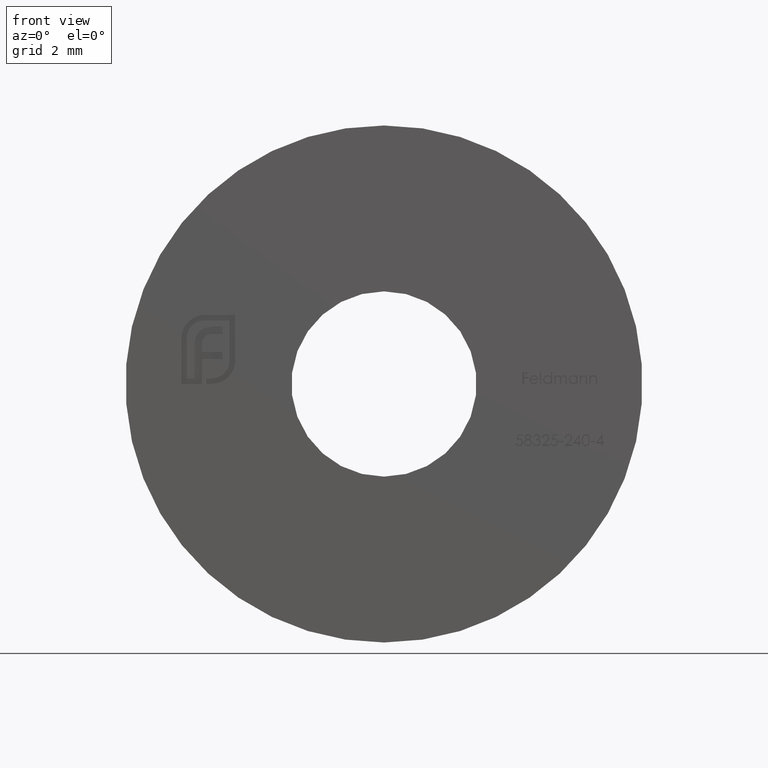
[diagram: clean part render]
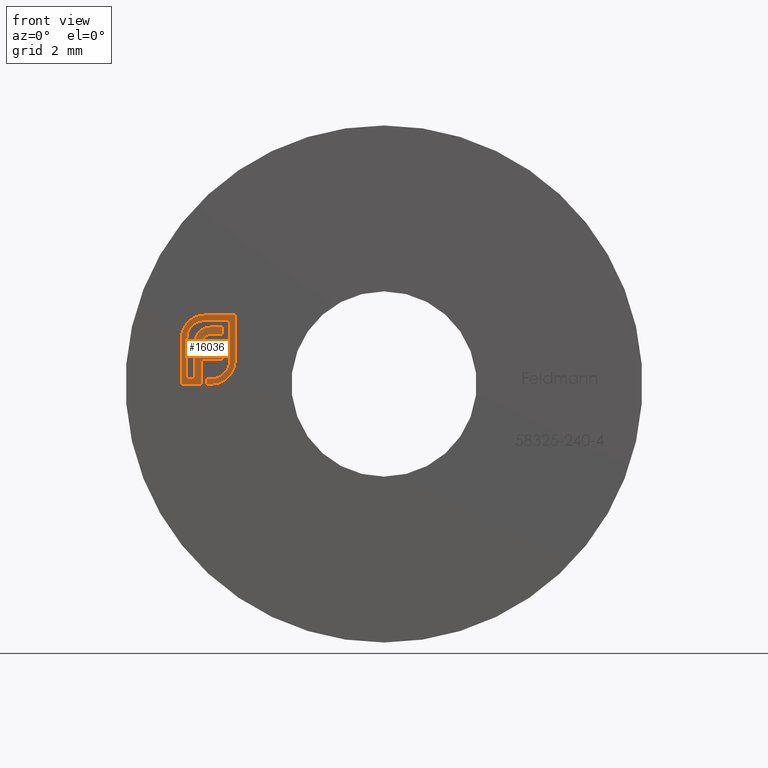
[diagram: same view with one face highlighted and labeled with its STEP entity id]
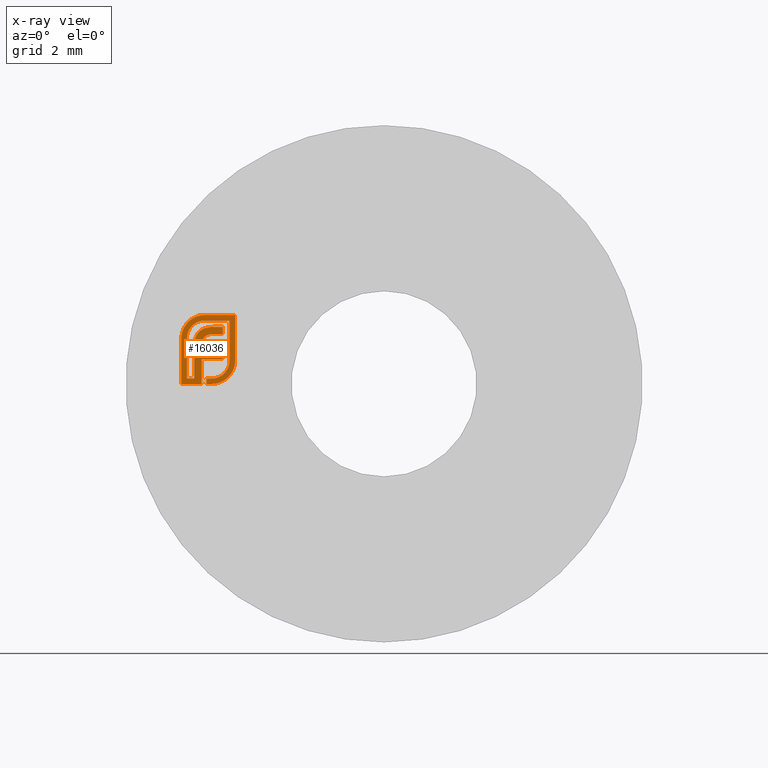
[diagram: x-ray of the same camera — body ghosted, the highlighted face saturated]
A machine part, front view. The second image highlights one B-rep face of the part: STEP entity #16036.
The next image is the same camera in x-ray: the body ghosted, the highlighted face saturated — about 0% of this face is hidden behind the body in this view.
In plain terms, the highlighted planar face has unit normal (0, -1, -0).
Its self-contained STEP definition (entity closure, byte-faithful):
#36 = ORIENTED_EDGE ( 'NONE', *, *, #3115, .F. ) ;
#106 = ORIENTED_EDGE ( 'NONE', *, *, #13630, .F. ) ;
#116 = CARTESIAN_POINT ( 'NONE',  ( -3.999554658974848298, -0.4000000000000000222, 0.000000000000000000 ) ) ;
#127 = CARTESIAN_POINT ( 'NONE',  ( -3.733088135354099446, -0.4000000000000000222, 0.07159281297280375989 ) ) ;
#153 = AXIS2_PLACEMENT_3D ( 'NONE', #1472, #11564, #11899 ) ;
#204 = B_SPLINE_CURVE_WITH_KNOTS ( 'NONE', 3,
 ( #1930, #10749, #3202, #4357, #5521, #9335, #7787 ),
 .UNSPECIFIED., .F., .F.,
 ( 4, 1, 1, 1, 4 ),
 ( 0.000000000000000000, 0.2663974462967100831, 0.5202005568595428064, 0.7659044003744390761, 1.000000000000000000 ),
 .UNSPECIFIED. ) ;
#217 = DIRECTION ( 'NONE',  ( -3.166044289548382817E-14, -3.957555361935478521E-15, 1.000000000000000000 ) ) ;
#322 = EDGE_CURVE ( 'NONE', #10700, #1573, #6845, .T. ) ;
#333 = DIRECTION ( 'NONE',  ( 1.000000000000000000, 0.000000000000000000, 0.000000000000000000 ) ) ;
#424 = ORIENTED_EDGE ( 'NONE', *, *, #13553, .F. ) ;
#476 = VERTEX_POINT ( 'NONE', #8366 ) ;
#522 = CARTESIAN_POINT ( 'NONE',  ( -4.231085321758122575, -0.4000000000000002442, 0.9239734979632048262 ) ) ;
#534 = CARTESIAN_POINT ( 'NONE',  ( -3.893974167128649189, -0.4000000000000001332, 0.009380844225528026104 ) ) ;
#650 = CARTESIAN_POINT ( 'NONE',  ( -4.389703789125392497, -0.4000000000000001332, 1.022375544888747045 ) ) ;
#699 = LINE ( 'NONE', #15989, #9981 ) ;
#730 = CARTESIAN_POINT ( 'NONE',  ( -4.507674219774742141, -0.3999999999999999112, 1.286621208712525943 ) ) ;
#823 = ORIENTED_EDGE ( 'NONE', *, *, #15577, .F. ) ;
#881 = EDGE_CURVE ( 'NONE', #11891, #8514, #11083, .T. ) ;
#892 = CARTESIAN_POINT ( 'NONE',  ( -4.173794164491057224, -0.3999999999999998002, 1.473227550997893598 ) ) ;
#1056 = LINE ( 'NONE', #9554, #12501 ) ;
#1090 = VERTEX_POINT ( 'NONE', #7735 ) ;
#1094 = LINE ( 'NONE', #8198, #8795 ) ;
#1107 = VERTEX_POINT ( 'NONE', #1750 ) ;
#1128 = LINE ( 'NONE', #11370, #2699 ) ;
#1180 = ORIENTED_EDGE ( 'NONE', *, *, #11076, .F. ) ;
#1207 = DIRECTION ( 'NONE',  ( -1.000000000000000000, 0.000000000000000000, 0.000000000000000000 ) ) ;
#1211 = VERTEX_POINT ( 'NONE', #8392 ) ;
#1227 = ORIENTED_EDGE ( 'NONE', *, *, #8751, .F. ) ;
#1247 = CARTESIAN_POINT ( 'NONE',  ( -4.298968547939800544, -0.4000000000000002442, 1.201593960516133652 ) ) ;
#1335 = DIRECTION ( 'NONE',  ( 1.000000000000000000, -7.560702781011642585E-15, 7.560702781011642585E-15 ) ) ;
#1388 = VERTEX_POINT ( 'NONE', #10074 ) ;
#1391 = CARTESIAN_POINT ( 'NONE',  ( -4.697385044406332533, -0.4000000000000001332, 1.128473651574875447 ) ) ;
#1453 = CARTESIAN_POINT ( 'NONE',  ( -4.674112834980037157, -0.3999999999999999112, 1.229760282681160888 ) ) ;
#1472 = CARTESIAN_POINT ( 'NONE',  ( -4.236474197818512089, -0.4000000000000000222, 1.594031296689726096 ) ) ;
#1493 = VERTEX_POINT ( 'NONE', #12996 ) ;
#1573 = VERTEX_POINT ( 'NONE', #9633 ) ;
#1653 = CARTESIAN_POINT ( 'NONE',  ( -3.748177203559129644, -0.4000000000000000222, 1.326232782020862144 ) ) ;
#1654 = DIRECTION ( 'NONE',  ( 0.000000000000000000, 0.000000000000000000, 1.000000000000000000 ) ) ;
#1746 = CARTESIAN_POINT ( 'NONE',  ( -3.677806544202375960, -0.4000000000000000222, 0.2777912812597952419 ) ) ;
#1750 = CARTESIAN_POINT ( 'NONE',  ( -4.231348430124463711, -0.4000000000000000222, 0.7432168700988371901 ) ) ;
#1780 = CARTESIAN_POINT ( 'NONE',  ( -3.707083571000749256, -0.4000000000000000222, 0.2472038833590084750 ) ) ;
#1807 = CARTESIAN_POINT ( 'NONE',  ( -3.583846058346531027, -0.3999999999999999112, 0.5278837320242464326 ) ) ;
#1835 = EDGE_CURVE ( 'NONE', #1493, #5547, #5206, .T. ) ;
#1912 = CARTESIAN_POINT ( 'NONE',  ( -3.967129214534251158, -0.4000000000000000222, 1.161537207782977532 ) ) ;
#1914 = CARTESIAN_POINT ( 'NONE',  ( -4.404312663743971790, -0.4000000000000000222, 0.8835249118466454998 ) ) ;
#1930 = CARTESIAN_POINT ( 'NONE',  ( -3.967129214534251158, -0.4000000000000000222, 1.161537207782977532 ) ) ;
#1945 = CARTESIAN_POINT ( 'NONE',  ( -4.142419240916093592, -0.4000000000000000222, 1.297980909636975655 ) ) ;
#1982 = EDGE_CURVE ( 'NONE', #6339, #7938, #13523, .T. ) ;
#2007 = CARTESIAN_POINT ( 'NONE',  ( -4.529020143618221361, -0.4000000000000001332, 1.252509509407138566 ) ) ;
#2033 = DIRECTION ( 'NONE',  ( -1.000000000000000000, -1.489903195081494132E-14, -0.000000000000000000 ) ) ;
#2035 = LINE ( 'NONE', #11528, #5392 ) ;
#2085 = CARTESIAN_POINT ( 'NONE',  ( -4.361020809703639145, -0.3999999999999999112, 1.109692898621747137 ) ) ;
#2091 = LINE ( 'NONE', #15308, #11355 ) ;
#2097 = CARTESIAN_POINT ( 'NONE',  ( -4.630085083542502034, -0.4000000000000000222, 1.323985473990325845 ) ) ;
#2111 = CARTESIAN_POINT ( 'NONE',  ( -4.568690151378755893, -0.4000000000000001332, 1.139824598638464526 ) ) ;
#2151 = CARTESIAN_POINT ( 'NONE',  ( -3.540140688732327678, -0.4000000000000000222, 0.2577983355029659363 ) ) ;
#2243 = EDGE_CURVE ( 'NONE', #12651, #8902, #9498, .T. ) ;
#2281 = CARTESIAN_POINT ( 'NONE',  ( -4.319327598634988163, -0.4000000000000000222, 1.443326677341211228 ) ) ;
#2355 = VERTEX_POINT ( 'NONE', #3861 ) ;
#2417 = VERTEX_POINT ( 'NONE', #9950 ) ;
#2426 = ORIENTED_EDGE ( 'NONE', *, *, #2713, .F. ) ;
#2441 = CARTESIAN_POINT ( 'NONE',  ( -4.087486555007143529, -0.4000000000000000222, 1.141150872756643508 ) ) ;
#2444 = EDGE_CURVE ( 'NONE', #7207, #4784, #5908, .T. ) ;
#2547 = ORIENTED_EDGE ( 'NONE', *, *, #7663, .F. ) ;
#2563 = ORIENTED_EDGE ( 'NONE', *, *, #11547, .F. ) ;
#2564 = ORIENTED_EDGE ( 'NONE', *, *, #1835, .F. ) ;
#2635 = B_SPLINE_CURVE_WITH_KNOTS ( 'NONE', 3,
 ( #3194, #4519, #5740, #9437, #12011, #8280, #534, #10563, #13183, #4464, #5578 ),
 .UNSPECIFIED., .F., .F.,
 ( 4, 1, 1, 1, 1, 1, 1, 1, 4 ),
 ( 0.000000000000000000, 0.1255101535771535048, 0.2499629154941277187, 0.3729415475394177171, 0.4954949726337942173, 0.6195755186633563616, 0.7452592868548906235, 0.8712004049175033904, 1.000000000000000000 ),
 .UNSPECIFIED. ) ;
#2666 = B_SPLINE_CURVE_WITH_KNOTS ( 'NONE', 3,
 ( #10702, #4197, #13033, #5686, #2974, #3079, #6978 ),
 .UNSPECIFIED., .F., .F.,
 ( 4, 1, 1, 1, 4 ),
 ( 0.000000000000000000, 0.2531688454537565636, 0.5035614958825498366, 0.7514299623983485832, 1.000000000000000000 ),
 .UNSPECIFIED. ) ;
#2682 = ORIENTED_EDGE ( 'NONE', *, *, #10920, .F. ) ;
#2699 = VECTOR ( 'NONE', #1335, 1000.000000000000000 ) ;
#2713 = EDGE_CURVE ( 'NONE', #1090, #11891, #10850, .T. ) ;
#2722 = CARTESIAN_POINT ( 'NONE',  ( -4.635764471484072224, -0.4000000000000000222, 1.313772857760228785 ) ) ;
#2772 = CARTESIAN_POINT ( 'NONE',  ( -3.457843192111953901, -0.3999999999999999112, 0.5289601859452607302 ) ) ;
#2797 = CARTESIAN_POINT ( 'NONE',  ( -4.323448849008137529, -0.4000000000000000222, 1.573834348125871418 ) ) ;
#2838 = LINE ( 'NONE', #13041, #7959 ) ;
#2878 = EDGE_CURVE ( 'NONE', #9548, #8531, #4647, .T. ) ;
#2930 = ORIENTED_EDGE ( 'NONE', *, *, #12690, .F. ) ;
#2944 = CARTESIAN_POINT ( 'NONE',  ( -4.172717710570045924, -0.4000000000000001332, 1.599230417232471613 ) ) ;
#2974 = CARTESIAN_POINT ( 'NONE',  ( -3.520967592918860856, -0.4000000000000001332, 0.2885932513837418112 ) ) ;
#2978 = VECTOR ( 'NONE', #4804, 1000.000000000000000 ) ;
#3017 = CARTESIAN_POINT ( 'NONE',  ( -4.231348430124463711, -0.4000000000000000222, 0.8928233761316916040 ) ) ;
#3079 = CARTESIAN_POINT ( 'NONE',  ( -3.533743638389394093, -0.4000000000000001332, 0.2680729739396757183 ) ) ;
#3092 = CARTESIAN_POINT ( 'NONE',  ( -4.116414676562744290, -0.4000000000000000222, 0.000000000000000000 ) ) ;
#3115 = EDGE_CURVE ( 'NONE', #5547, #7207, #204, .T. ) ;
#3137 = LINE ( 'NONE', #4817, #5323 ) ;
#3194 = CARTESIAN_POINT ( 'NONE',  ( -3.733088135354099446, -0.4000000000000000222, 0.07159281297280375989 ) ) ;
#3202 = CARTESIAN_POINT ( 'NONE',  ( -3.997178557037526669, -0.4000000000000000222, 1.161105721189783280 ) ) ;
#3223 = CARTESIAN_POINT ( 'NONE',  ( -3.717254778390181702, -0.3999999999999999112, 0.2374338926720714615 ) ) ;
#3265 = CARTESIAN_POINT ( 'NONE',  ( -4.559669394013216248, -0.4000000000000000222, 1.179011378935941323 ) ) ;
#3303 = CARTESIAN_POINT ( 'NONE',  ( -3.936630034119828370, -0.4000000000000000222, 1.326232782020862144 ) ) ;
#3377 = VERTEX_POINT ( 'NONE', #7287 ) ;
#3512 = EDGE_CURVE ( 'NONE', #7938, #5296, #2635, .T. ) ;
#3541 = EDGE_CURVE ( 'NONE', #7051, #14780, #9268, .T. ) ;
#3547 = ORIENTED_EDGE ( 'NONE', *, *, #7429, .F. ) ;
#3580 = CARTESIAN_POINT ( 'NONE',  ( -4.594253941607430392, -0.3999999999999999112, 1.382098620695016544 ) ) ;
#3626 = CARTESIAN_POINT ( 'NONE',  ( -4.340244722378532316, -0.4000000000000001332, 1.147229309736004899 ) ) ;
#3696 = CARTESIAN_POINT ( 'NONE',  ( -4.162002925182196833, -0.4000000000000000222, 1.092191702840709988 ) ) ;
#3719 = CARTESIAN_POINT ( 'NONE',  ( -4.575828646805265798, -0.4000000000000001332, 0.5916841000398085360 ) ) ;
#3758 = ORIENTED_EDGE ( 'NONE', *, *, #9926, .F. ) ;
#3827 = CARTESIAN_POINT ( 'NONE',  ( -3.674883636297463507, -0.4000000000000000222, 0.1074186003092746922 ) ) ;
#3861 = CARTESIAN_POINT ( 'NONE',  ( -3.583481629321244810, -0.4000000000000000222, 1.473591980023180481 ) ) ;
#3955 = CARTESIAN_POINT ( 'NONE',  ( -3.583481629321244810, -0.4000000000000000222, 0.5419222793636445656 ) ) ;
#4041 = CARTESIAN_POINT ( 'NONE',  ( -3.577316934672655879, -0.4000000000000001332, 0.2012862349684039209 ) ) ;
#4114 = CARTESIAN_POINT ( 'NONE',  ( -4.311609431215051913, -0.4000000000000000222, 1.577610237436581464 ) ) ;
#4142 = CARTESIAN_POINT ( 'NONE',  ( -3.457632379611204065, -0.4000000000000000222, 0.5419222793636445656 ) ) ;
#4171 = CARTESIAN_POINT ( 'NONE',  ( -4.096350282335944115, -0.4000000000000001332, 1.311784634543276873 ) ) ;
#4179 = ORIENTED_EDGE ( 'NONE', *, *, #10741, .F. ) ;
#4197 = CARTESIAN_POINT ( 'NONE',  ( -3.483242496549885381, -0.4000000000000000222, 0.3783369190161068318 ) ) ;
#4222 = CARTESIAN_POINT ( 'NONE',  ( -4.214012053888897213, -0.4000000000000000222, 1.007757129693412468 ) ) ;
#4248 = CARTESIAN_POINT ( 'NONE',  ( -3.808693998381432522, -0.3999999999999999112, 1.599441229733220782 ) ) ;
#4357 = CARTESIAN_POINT ( 'NONE',  ( -4.026261722086799111, -0.4000000000000001332, 1.157739626296802715 ) ) ;
#4362 = ORIENTED_EDGE ( 'NONE', *, *, #14621, .F. ) ;
#4369 = CARTESIAN_POINT ( 'NONE',  ( -4.454474013156295875, -0.4000000000000000222, 1.349990038343676257 ) ) ;
#4389 = CARTESIAN_POINT ( 'NONE',  ( -4.142419240916093592, -0.4000000000000000222, 1.297980909636975655 ) ) ;
#4436 = CARTESIAN_POINT ( 'NONE',  ( -3.917249010705960544, -0.3999999999999999112, 0.1329877451365502616 ) ) ;
#4464 = CARTESIAN_POINT ( 'NONE',  ( -3.987557181371951476, -0.4000000000000000222, 0.0001150165058460365106 ) ) ;
#4470 = CARTESIAN_POINT ( 'NONE',  ( -4.159755617151660978, -0.4000000000000000222, 1.599441229733221004 ) ) ;
#4519 = CARTESIAN_POINT ( 'NONE',  ( -3.743300751584197172, -0.4000000000000000222, 0.06591342503123397145 ) ) ;
#4567 = ORIENTED_EDGE ( 'NONE', *, *, #15854, .F. ) ;
#4617 = CARTESIAN_POINT ( 'NONE',  ( -4.231348430124463711, -0.4000000000000000222, 0.5807686038914887661 ) ) ;
#4647 = B_SPLINE_CURVE_WITH_KNOTS ( 'NONE', 3,
 ( #10980, #8465, #5764, #7039, #10924, #9517, #1945 ),
 .UNSPECIFIED., .F., .F.,
 ( 4, 1, 1, 1, 4 ),
 ( 0.000000000000000000, 0.2411211622112628961, 0.4851305330037715691, 0.7363631959406398142, 1.000000000000000000 ),
 .UNSPECIFIED. ) ;
#4784 = VERTEX_POINT ( 'NONE', #6140 ) ;
#4804 = DIRECTION ( 'NONE',  ( 0.000000000000000000, 0.000000000000000000, -1.000000000000000000 ) ) ;
#4806 = CARTESIAN_POINT ( 'NONE',  ( -4.231348430124463711, -0.4000000000000000222, 0.000000000000000000 ) ) ;
#4817 = CARTESIAN_POINT ( 'NONE',  ( -4.701677896515304766, -0.4000000000000000222, 0.5287594751847881636 ) ) ;
#4831 = CARTESIAN_POINT ( 'NONE',  ( -4.390434684482748651, -0.4000000000000000222, 1.404246482407171426 ) ) ;
#4834 = CARTESIAN_POINT ( 'NONE',  ( -4.454474013156295875, -0.4000000000000000222, 1.349990038343676257 ) ) ;
#4895 = EDGE_CURVE ( 'NONE', #5296, #7051, #5690, .T. ) ;
#5114 = DIRECTION ( 'NONE',  ( -5.707798155805711639E-14, -7.134747694757139549E-15, -1.000000000000000000 ) ) ;
#5158 = ORIENTED_EDGE ( 'NONE', *, *, #881, .F. ) ;
#5206 = LINE ( 'NONE', #13672, #6781 ) ;
#5282 = CARTESIAN_POINT ( 'NONE',  ( -4.159755617151660978, -0.4000000000000000222, 1.599441229733221004 ) ) ;
#5296 = VERTEX_POINT ( 'NONE', #116 ) ;
#5323 = VECTOR ( 'NONE', #7345, 1000.000000000000000 ) ;
#5351 = ORIENTED_EDGE ( 'NONE', *, *, #13253, .F. ) ;
#5387 = ORIENTED_EDGE ( 'NONE', *, *, #8101, .F. ) ;
#5392 = VECTOR ( 'NONE', #333, 1000.000000000000000 ) ;
#5469 = VERTEX_POINT ( 'NONE', #9097 ) ;
#5521 = CARTESIAN_POINT ( 'NONE',  ( -4.053851430378696108, -0.4000000000000000222, 1.152579111626905517 ) ) ;
#5541 = ORIENTED_EDGE ( 'NONE', *, *, #5866, .F. ) ;
#5547 = VERTEX_POINT ( 'NONE', #1912 ) ;
#5566 = CARTESIAN_POINT ( 'NONE',  ( -3.631021716587095494, -0.4000000000000001332, 0.3458365530325297477 ) ) ;
#5578 = CARTESIAN_POINT ( 'NONE',  ( -3.999554658974848298, -0.4000000000000000222, 0.000000000000000000 ) ) ;
#5686 = CARTESIAN_POINT ( 'NONE',  ( -3.505171492156287538, -0.3999999999999999112, 0.3213677949570482584 ) ) ;
#5690 = LINE ( 'NONE', #16002, #7280 ) ;
#5740 = CARTESIAN_POINT ( 'NONE',  ( -3.763639945306309187, -0.4000000000000001332, 0.05460249657137594692 ) ) ;
#5764 = CARTESIAN_POINT ( 'NONE',  ( -4.259298898095822850, -0.4000000000000000222, 1.240004344986883833 ) ) ;
#5866 = EDGE_CURVE ( 'NONE', #5926, #8036, #10028, .T. ) ;
#5894 = CARTESIAN_POINT ( 'NONE',  ( -4.116414676562744290, -0.4000000000000000222, 0.1258492497100406893 ) ) ;
#5908 = B_SPLINE_CURVE_WITH_KNOTS ( 'NONE', 3,
 ( #8785, #2441, #6413, #12484, #13762, #6213, #3696 ),
 .UNSPECIFIED., .F., .F.,
 ( 4, 1, 1, 1, 4 ),
 ( 0.000000000000000000, 0.2524546485597087275, 0.5031396088336628214, 0.7494862726423914268, 1.000000000000000000 ),
 .UNSPECIFIED. ) ;
#5926 = VERTEX_POINT ( 'NONE', #4222 ) ;
#5982 = ORIENTED_EDGE ( 'NONE', *, *, #15610, .F. ) ;
#6041 = CARTESIAN_POINT ( 'NONE',  ( -4.242338693242288628, -0.4000000000000001332, 1.466613509484319788 ) ) ;
#6089 = CARTESIAN_POINT ( 'NONE',  ( -4.454474013156295875, -0.4000000000000000222, 1.349990038343676257 ) ) ;
#6140 = CARTESIAN_POINT ( 'NONE',  ( -4.162002925182196833, -0.4000000000000000222, 1.092191702840709988 ) ) ;
#6169 = ORIENTED_EDGE ( 'NONE', *, *, #8674, .F. ) ;
#6186 = CARTESIAN_POINT ( 'NONE',  ( -4.289778438918412817, -0.4000000000000001332, 1.211299028459141836 ) ) ;
#6213 = CARTESIAN_POINT ( 'NONE',  ( -4.156017438870261316, -0.4000000000000000222, 1.097784446073585274 ) ) ;
#6339 = VERTEX_POINT ( 'NONE', #2151 ) ;
#6365 = VERTEX_POINT ( 'NONE', #3303 ) ;
#6387 = VERTEX_POINT ( 'NONE', #4470 ) ;
#6413 = CARTESIAN_POINT ( 'NONE',  ( -4.102774572488282701, -0.4000000000000000222, 1.135072335159098111 ) ) ;
#6426 = CARTESIAN_POINT ( 'NONE',  ( -3.713569339138605319, -0.4000000000000000222, 0.08360693994947961116 ) ) ;
#6581 = ORIENTED_EDGE ( 'NONE', *, *, #7698, .F. ) ;
#6605 = EDGE_CURVE ( 'NONE', #11304, #2417, #14365, .T. ) ;
#6644 = EDGE_CURVE ( 'NONE', #8514, #1388, #15193, .T. ) ;
#6705 = CARTESIAN_POINT ( 'NONE',  ( -4.435316693264055310, -0.4000000000000000222, 1.523333559948504279 ) ) ;
#6711 = CARTESIAN_POINT ( 'NONE',  ( -3.955804379730010645, -0.3999999999999999112, 1.326017427491732015 ) ) ;
#6713 = CARTESIAN_POINT ( 'NONE',  ( -4.227031031437159747, -0.4000000000000001332, 0.9537080134756027450 ) ) ;
#6763 = ORIENTED_EDGE ( 'NONE', *, *, #10674, .F. ) ;
#6781 = VECTOR ( 'NONE', #8799, 1000.000000000000000 ) ;
#6845 = B_SPLINE_CURVE_WITH_KNOTS ( 'NONE', 3,
 ( #8193, #10765, #11929, #4436, #6923, #9352, #8246, #10534, #8309, #3223, #1780 ),
 .UNSPECIFIED., .F., .F.,
 ( 4, 1, 1, 1, 1, 1, 1, 1, 4 ),
 ( 0.000000000000000000, 0.1294153089051528205, 0.2550231684446454539, 0.3778159505448316913, 0.4995652956731371219, 0.6218454371786018564, 0.7445549121012168259, 0.8700852119793848205, 1.000000000000000000 ),
 .UNSPECIFIED. ) ;
#6923 = CARTESIAN_POINT ( 'NONE',  ( -3.878062230408484190, -0.4000000000000001332, 0.1420085025020886293 ) ) ;
#6978 = CARTESIAN_POINT ( 'NONE',  ( -3.540140688732327678, -0.4000000000000000222, 0.2577983355029659363 ) ) ;
#7039 = CARTESIAN_POINT ( 'NONE',  ( -4.223584287564138506, -0.4000000000000001332, 1.263079354471270399 ) ) ;
#7051 = VERTEX_POINT ( 'NONE', #3092 ) ;
#7124 = EDGE_CURVE ( 'NONE', #9101, #2355, #11602, .T. ) ;
#7167 = ORIENTED_EDGE ( 'NONE', *, *, #6644, .F. ) ;
#7185 = CARTESIAN_POINT ( 'NONE',  ( -4.618056970960664920, -0.4000000000000000222, 1.343493405730695089 ) ) ;
#7207 = VERTEX_POINT ( 'NONE', #14488 ) ;
#7280 = VECTOR ( 'NONE', #2033, 1000.000000000000000 ) ;
#7282 = CARTESIAN_POINT ( 'NONE',  ( -4.550166541872976644, -0.3999999999999999112, 1.433450223188046824 ) ) ;
#7287 = CARTESIAN_POINT ( 'NONE',  ( -4.376460320096247081, -0.4000000000000001332, 1.068434446517896541 ) ) ;
#7345 = DIRECTION ( 'NONE',  ( 5.707798155805537459E-14, 7.134747694756921824E-15, 1.000000000000000000 ) ) ;
#7360 = CARTESIAN_POINT ( 'NONE',  ( -4.159755617151660978, -0.4000000000000000222, 1.473591980023180481 ) ) ;
#7406 = ORIENTED_EDGE ( 'NONE', *, *, #14876, .F. ) ;
#7429 = EDGE_CURVE ( 'NONE', #8902, #9112, #10434, .T. ) ;
#7458 = CARTESIAN_POINT ( 'NONE',  ( -3.733088135354099446, -0.4000000000000000222, 0.07159281297280375989 ) ) ;
#7483 = CARTESIAN_POINT ( 'NONE',  ( -4.205213972911209908, -0.3999999999999996891, 1.031886629745971229 ) ) ;
#7570 = CARTESIAN_POINT ( 'NONE',  ( -3.748177203559129644, -0.4000000000000000222, 0.5807686038914887661 ) ) ;
#7621 = VERTEX_POINT ( 'NONE', #9066 ) ;
#7641 = CARTESIAN_POINT ( 'NONE',  ( -4.159755617151660978, -0.4000000000000000222, 1.473591980023180481 ) ) ;
#7663 = EDGE_CURVE ( 'NONE', #6387, #11304, #12790, .T. ) ;
#7698 = EDGE_CURVE ( 'NONE', #6365, #11841, #16288, .T. ) ;
#7735 = CARTESIAN_POINT ( 'NONE',  ( -4.701677896515304766, -0.4000000000000000222, 1.057518950369576549 ) ) ;
#7749 = CARTESIAN_POINT ( 'NONE',  ( -3.479463371907844049, -0.4000000000000000222, 0.3900684653002535751 ) ) ;
#7758 = VERTEX_POINT ( 'NONE', #4617 ) ;
#7774 = CARTESIAN_POINT ( 'NONE',  ( -3.590460099860104393, -0.3999999999999999112, 0.4593392032730171937 ) ) ;
#7787 = CARTESIAN_POINT ( 'NONE',  ( -4.079815660065436056, -0.4000000000000000222, 1.144200831547410813 ) ) ;
#7849 = VECTOR ( 'NONE', #9544, 1000.000000000000000 ) ;
#7866 = CARTESIAN_POINT ( 'NONE',  ( -4.445805825038513071, -0.4000000000000000222, 1.516932920612097613 ) ) ;
#7938 = VERTEX_POINT ( 'NONE', #7458 ) ;
#7946 = CARTESIAN_POINT ( 'NONE',  ( -4.575828646805264022, -0.4000000000000000222, 1.057518950369576549 ) ) ;
#7959 = VECTOR ( 'NONE', #8059, 1000.000000000000000 ) ;
#7976 = CARTESIAN_POINT ( 'NONE',  ( -4.142419240916093592, -0.4000000000000000222, 1.297980909636975655 ) ) ;
#8036 = VERTEX_POINT ( 'NONE', #3017 ) ;
#8046 = CARTESIAN_POINT ( 'NONE',  ( -3.583481629321244810, -0.4000000000000000222, 0.5419222793636445656 ) ) ;
#8059 = DIRECTION ( 'NONE',  ( -1.000000000000000000, 0.000000000000000000, 1.266417715819351044E-14 ) ) ;
#8097 = CARTESIAN_POINT ( 'NONE',  ( -3.600141383839004838, -0.4000000000000003553, 0.4200812668380819459 ) ) ;
#8101 = EDGE_CURVE ( 'NONE', #15455, #5469, #15131, .T. ) ;
#8122 = VERTEX_POINT ( 'NONE', #10620 ) ;
#8135 = ORIENTED_EDGE ( 'NONE', *, *, #2878, .F. ) ;
#8168 = CARTESIAN_POINT ( 'NONE',  ( -4.404712192480132238, -0.4000000000000000222, 0.4952103767289227632 ) ) ;
#8192 = LINE ( 'NONE', #14126, #11865 ) ;
#8193 = CARTESIAN_POINT ( 'NONE',  ( -3.999554658974848298, -0.4000000000000000222, 0.1258492497100406893 ) ) ;
#8198 = CARTESIAN_POINT ( 'NONE',  ( -3.748177203559129644, -0.4000000000000000222, 1.243884994901919727 ) ) ;
#8246 = CARTESIAN_POINT ( 'NONE',  ( -3.804564099937287835, -0.4000000000000000222, 0.1726577528970835440 ) ) ;
#8268 = VECTOR ( 'NONE', #217, 1000.000000000000000 ) ;
#8280 = CARTESIAN_POINT ( 'NONE',  ( -3.860277366516108977, -0.4000000000000000222, 0.01765961787323665558 ) ) ;
#8304 = CARTESIAN_POINT ( 'NONE',  ( -4.483454258255523683, -0.4000000000000000222, 1.319819683780802055 ) ) ;
#8309 = CARTESIAN_POINT ( 'NONE',  ( -3.737253925563622570, -0.4000000000000000222, 0.2182236382597801949 ) ) ;
#8366 = CARTESIAN_POINT ( 'NONE',  ( -4.701677896515304766, -0.4000000000000000222, 0.000000000000000000 ) ) ;
#8371 = CARTESIAN_POINT ( 'NONE',  ( -3.583481629321244810, -0.4000000000000000222, 1.007757129693412468 ) ) ;
#8387 = CARTESIAN_POINT ( 'NONE',  ( -4.376460320096247081, -0.4000000000000001332, 1.068434446517896541 ) ) ;
#8392 = CARTESIAN_POINT ( 'NONE',  ( -4.575828646805264022, -0.4000000000000000222, 0.1258492497100406893 ) ) ;
#8419 = B_SPLINE_CURVE_WITH_KNOTS ( 'NONE', 3,
 ( #7976, #15397, #4171, #12904, #9159, #6711, #13002 ),
 .UNSPECIFIED., .F., .F.,
 ( 4, 1, 1, 1, 4 ),
 ( 0.000000000000000000, 0.2252149288326738552, 0.4659087912857254321, 0.7243281698455822371, 0.9999999999999998890 ),
 .UNSPECIFIED. ) ;
#8441 = B_SPLINE_CURVE_WITH_KNOTS ( 'NONE', 3,
 ( #15614, #11509, #1746, #15666, #5566, #13174, #8097, #7774, #10293, #1807, #3955 ),
 .UNSPECIFIED., .F., .F.,
 ( 4, 1, 1, 1, 1, 1, 1, 1, 4 ),
 ( 0.000000000000000000, 0.1300684187865167873, 0.2563684206270608890, 0.3806087965304097431, 0.5030361388155299984, 0.6245546842700441248, 0.7464187435721217900, 0.8718075328738722485, 1.000000000000000000 ),
 .UNSPECIFIED. ) ;
#8460 = CARTESIAN_POINT ( 'NONE',  ( -4.423886615255510080, -0.3999999999999999112, 1.379267065142049775 ) ) ;
#8465 = CARTESIAN_POINT ( 'NONE',  ( -4.279658996368081780, -0.4000000000000000222, 1.220829414864314622 ) ) ;
#8514 = VERTEX_POINT ( 'NONE', #9364 ) ;
#8531 = VERTEX_POINT ( 'NONE', #4389 ) ;
#8587 = DIRECTION ( 'NONE',  ( 0.000000000000000000, 0.000000000000000000, -1.000000000000000000 ) ) ;
#8592 = CARTESIAN_POINT ( 'NONE',  ( -4.162002925182196833, -0.4000000000000000222, 1.092191702840709988 ) ) ;
#8622 = CARTESIAN_POINT ( 'NONE',  ( -4.281596629677221877, -0.3999999999999999112, 1.456932225505422673 ) ) ;
#8639 = CARTESIAN_POINT ( 'NONE',  ( -4.192425178756393755, -0.4000000000000004663, 1.053611750900857791 ) ) ;
#8674 = EDGE_CURVE ( 'NONE', #4784, #5926, #14288, .T. ) ;
#8744 = ORIENTED_EDGE ( 'NONE', *, *, #2243, .F. ) ;
#8751 = EDGE_CURVE ( 'NONE', #1107, #7621, #1128, .T. ) ;
#8785 = CARTESIAN_POINT ( 'NONE',  ( -4.079815660065436056, -0.4000000000000000222, 1.144200831547410813 ) ) ;
#8795 = VECTOR ( 'NONE', #11935, 1000.000000000000000 ) ;
#8799 = DIRECTION ( 'NONE',  ( -1.000000000000000000, 8.040747402028023363E-15, -1.608149480405604673E-14 ) ) ;
#8902 = VERTEX_POINT ( 'NONE', #4834 ) ;
#8968 = CARTESIAN_POINT ( 'NONE',  ( -4.701562880009459988, -0.4000000000000000222, 1.069516427972472927 ) ) ;
#9004 = DIRECTION ( 'NONE',  ( 1.000000000000000000, -1.489903195081494132E-14, 0.000000000000000000 ) ) ;
#9017 = CARTESIAN_POINT ( 'NONE',  ( -4.684018278642069433, -0.4000000000000001332, 1.196796242828315648 ) ) ;
#9037 = PLANE ( 'NONE',  #153 ) ;
#9066 = CARTESIAN_POINT ( 'NONE',  ( -3.748177203559129644, -0.4000000000000000222, 0.7432168700988371901 ) ) ;
#9097 = CARTESIAN_POINT ( 'NONE',  ( -4.404712192480132238, -0.4000000000000000222, 0.8645715037478048925 ) ) ;
#9101 = VERTEX_POINT ( 'NONE', #8046 ) ;
#9112 = VERTEX_POINT ( 'NONE', #7946 ) ;
#9118 = CARTESIAN_POINT ( 'NONE',  ( -4.057984667768796960, -0.4000000000000000222, 0.1258492497100406893 ) ) ;
#9133 = CARTESIAN_POINT ( 'NONE',  ( -3.540140688732327678, -0.4000000000000000222, 0.2577983355029659363 ) ) ;
#9159 = CARTESIAN_POINT ( 'NONE',  ( -3.992953077213939661, -0.3999999999999999112, 1.325600196029595335 ) ) ;
#9226 = CARTESIAN_POINT ( 'NONE',  ( -3.842403618839480117, -0.4000000000000000222, 1.326232782020862144 ) ) ;
#9268 = LINE ( 'NONE', #13298, #10839 ) ;
#9277 = ORIENTED_EDGE ( 'NONE', *, *, #4895, .F. ) ;
#9316 = CARTESIAN_POINT ( 'NONE',  ( -4.376460320096247081, -0.4000000000000001332, 1.068434446517896541 ) ) ;
#9318 = EDGE_CURVE ( 'NONE', #14410, #7758, #13158, .T. ) ;
#9335 = CARTESIAN_POINT ( 'NONE',  ( -4.071301646725626888, -0.4000000000000000222, 1.146948180081224233 ) ) ;
#9345 = B_SPLINE_CURVE_WITH_KNOTS ( 'NONE', 3,
 ( #4114, #14309, #10548, #10498, #12954, #2944, #5282 ),
 .UNSPECIFIED., .F., .F.,
 ( 4, 1, 1, 1, 4 ),
 ( 0.000000000000000000, 0.2498987543963744062, 0.4978226843676620827, 0.7474950417136813074, 1.000000000000000000 ),
 .UNSPECIFIED. ) ;
#9352 = CARTESIAN_POINT ( 'NONE',  ( -3.840704717084974185, -0.4000000000000000222, 0.1558899247665637977 ) ) ;
#9364 = CARTESIAN_POINT ( 'NONE',  ( -4.445805825038513071, -0.4000000000000000222, 1.516932920612097613 ) ) ;
#9382 = DIRECTION ( 'NONE',  ( 0.000000000000000000, 0.000000000000000000, 1.000000000000000000 ) ) ;
#9436 = VECTOR ( 'NONE', #15633, 1000.000000000000000 ) ;
#9437 = CARTESIAN_POINT ( 'NONE',  ( -3.795065027247780609, -0.4000000000000001332, 0.03976171185469341146 ) ) ;
#9498 = B_SPLINE_CURVE_WITH_KNOTS ( 'NONE', 3,
 ( #7360, #892, #13709, #6041, #8622, #2281, #14781, #4831, #8460, #13585, #6089 ),
 .UNSPECIFIED., .F., .F.,
 ( 4, 1, 1, 1, 1, 1, 1, 1, 4 ),
 ( 0.000000000000000000, 0.1281924671261265580, 0.2535812564278782100, 0.3754453157299565969, 0.4969638611844700571, 0.6193912034695919777, 0.7436315793729405543, 0.8699315812134853498, 1.000000000000000000 ),
 .UNSPECIFIED. ) ;
#9517 = CARTESIAN_POINT ( 'NONE',  ( -4.156818390165595289, -0.4000000000000000222, 1.293129012393195554 ) ) ;
#9544 = DIRECTION ( 'NONE',  ( 1.000000000000000000, 9.210310660504181760E-15, 0.000000000000000000 ) ) ;
#9548 = VERTEX_POINT ( 'NONE', #10297 ) ;
#9554 = CARTESIAN_POINT ( 'NONE',  ( -4.231348430124463711, -0.3999999999999999112, 0.8180201231152642860 ) ) ;
#9633 = CARTESIAN_POINT ( 'NONE',  ( -3.707083571000749256, -0.4000000000000000222, 0.2472038833590084750 ) ) ;
#9791 = B_SPLINE_CURVE_WITH_KNOTS ( 'NONE', 3,
 ( #13122, #1914, #10606, #14429, #650, #13227, #9316 ),
 .UNSPECIFIED., .F., .F.,
 ( 4, 1, 1, 1, 4 ),
 ( 0.000000000000000000, 0.2752367449667304511, 0.5313220627563626230, 0.7730509928784805584, 0.9999999999999998890 ),
 .UNSPECIFIED. ) ;
#9810 = VECTOR ( 'NONE', #1207, 1000.000000000000000 ) ;
#9926 = EDGE_CURVE ( 'NONE', #7621, #14410, #2091, .T. ) ;
#9950 = CARTESIAN_POINT ( 'NONE',  ( -3.457632379611204065, -0.4000000000000000222, 0.5419222793636445656 ) ) ;
#9981 = VECTOR ( 'NONE', #8587, 1000.000000000000000 ) ;
#10028 = B_SPLINE_CURVE_WITH_KNOTS ( 'NONE', 3,
 ( #10390, #10439, #11675, #6713, #522, #13169, #13117 ),
 .UNSPECIFIED., .F., .F.,
 ( 4, 1, 1, 1, 4 ),
 ( 0.000000000000000000, 0.2296577939907745725, 0.4728894664265893000, 0.7276593582172837804, 1.000000000000000000 ),
 .UNSPECIFIED. ) ;
#10063 = CARTESIAN_POINT ( 'NONE',  ( -4.178956643076361388, -0.3999999999999996891, 1.074381670838818081 ) ) ;
#10074 = CARTESIAN_POINT ( 'NONE',  ( -4.311609431215051913, -0.4000000000000000222, 1.577610237436581464 ) ) ;
#10201 = DIRECTION ( 'NONE',  ( -1.000000000000000000, 1.013134172655444958E-14, -0.000000000000000000 ) ) ;
#10210 = VECTOR ( 'NONE', #1654, 1000.000000000000000 ) ;
#10270 = B_SPLINE_CURVE_WITH_KNOTS ( 'NONE', 3,
 ( #8387, #12290, #2085, #3626, #11175, #1247, #6186 ),
 .UNSPECIFIED., .F., .F.,
 ( 4, 1, 1, 1, 4 ),
 ( 0.000000000000000000, 0.2650465622674555988, 0.5182727197139306297, 0.7624607574988784275, 1.000000000000000000 ),
 .UNSPECIFIED. ) ;
#10275 = CARTESIAN_POINT ( 'NONE',  ( -4.647075399943930485, -0.4000000000000001332, 1.293433664038116993 ) ) ;
#10293 = CARTESIAN_POINT ( 'NONE',  ( -3.584566946025680156, -0.4000000000000000222, 0.5001136722652419486 ) ) ;
#10297 = CARTESIAN_POINT ( 'NONE',  ( -4.289778438918412817, -0.4000000000000001332, 1.211299028459141836 ) ) ;
#10390 = CARTESIAN_POINT ( 'NONE',  ( -4.214012053888897213, -0.4000000000000000222, 1.007757129693412468 ) ) ;
#10430 = CARTESIAN_POINT ( 'NONE',  ( -4.414360762315159725, -0.3999999999999999112, 1.536121210904432655 ) ) ;
#10434 = B_SPLINE_CURVE_WITH_KNOTS ( 'NONE', 3,
 ( #4369, #15750, #8304, #730, #2007, #13261, #3265, #2111, #12095, #11924, #12149 ),
 .UNSPECIFIED., .F., .F.,
 ( 4, 1, 1, 1, 1, 1, 1, 1, 4 ),
 ( 0.000000000000000000, 0.1299147880206164840, 0.2554450878987845619, 0.3781545628213986987, 0.5004347043268636552, 0.6221840494551688083, 0.7449768315553536580, 0.8705846910948467077, 1.000000000000000000 ),
 .UNSPECIFIED. ) ;
#10439 = CARTESIAN_POINT ( 'NONE',  ( -4.216803379758613524, -0.4000000000000001332, 0.9992509534036643215 ) ) ;
#10498 = CARTESIAN_POINT ( 'NONE',  ( -4.236766140896420119, -0.3999999999999999112, 1.594334467525990284 ) ) ;
#10534 = CARTESIAN_POINT ( 'NONE',  ( -3.770452400631899792, -0.4000000000000001332, 0.1940036767405629581 ) ) ;
#10548 = CARTESIAN_POINT ( 'NONE',  ( -4.274609459095551678, -0.4000000000000001332, 1.587841317784768114 ) ) ;
#10563 = CARTESIAN_POINT ( 'NONE',  ( -3.928599957769550066, -0.4000000000000000222, 0.004292852108972495737 ) ) ;
#10606 = CARTESIAN_POINT ( 'NONE',  ( -4.403541406140799808, -0.4000000000000000222, 0.9201129186135339477 ) ) ;
#10620 = CARTESIAN_POINT ( 'NONE',  ( -3.479463371907844049, -0.4000000000000000222, 0.3900684653002535751 ) ) ;
#10674 = EDGE_CURVE ( 'NONE', #11841, #1493, #1094, .T. ) ;
#10700 = VERTEX_POINT ( 'NONE', #14525 ) ;
#10702 = CARTESIAN_POINT ( 'NONE',  ( -3.479463371907844049, -0.4000000000000000222, 0.3900684653002535751 ) ) ;
#10741 = EDGE_CURVE ( 'NONE', #7758, #11543, #699, .T. ) ;
#10749 = CARTESIAN_POINT ( 'NONE',  ( -3.977306036842020553, -0.4000000000000000222, 1.161391076053584603 ) ) ;
#10765 = CARTESIAN_POINT ( 'NONE',  ( -3.985512374280949288, -0.4000000000000000222, 0.1261960901823594161 ) ) ;
#10839 = VECTOR ( 'NONE', #9382, 1000.000000000000000 ) ;
#10850 = B_SPLINE_CURVE_WITH_KNOTS ( 'NONE', 3,
 ( #14240, #8968, #15278, #1391, #11488, #9017, #1453, #11544, #10275, #2722, #14090 ),
 .UNSPECIFIED., .F., .F.,
 ( 4, 1, 1, 1, 1, 1, 1, 1, 4 ),
 ( 0.000000000000000000, 0.1287995950824966096, 0.2547407131451108753, 0.3804244813366446931, 0.5045050273662058382, 0.6270584524605825605, 0.7500370845058733638, 0.8744898464228475499, 1.000000000000000000 ),
 .UNSPECIFIED. ) ;
#10920 = EDGE_CURVE ( 'NONE', #2417, #8122, #13880, .T. ) ;
#10924 = CARTESIAN_POINT ( 'NONE',  ( -4.184939207081660228, -0.4000000000000000222, 1.283653500213708387 ) ) ;
#10956 = ORIENTED_EDGE ( 'NONE', *, *, #3541, .F. ) ;
#10980 = CARTESIAN_POINT ( 'NONE',  ( -4.289778438918412817, -0.4000000000000001332, 1.211299028459141836 ) ) ;
#11076 = EDGE_CURVE ( 'NONE', #8122, #6339, #2666, .T. ) ;
#11083 = B_SPLINE_CURVE_WITH_KNOTS ( 'NONE', 3,
 ( #2097, #7185, #3580, #7282, #11082, #13636, #16116 ),
 .UNSPECIFIED., .F., .F.,
 ( 4, 1, 1, 1, 4 ),
 ( 0.000000000000000000, 0.2548261097762424821, 0.5042880443381979605, 0.7513476757168007225, 1.000000000000000000 ),
 .UNSPECIFIED. ) ;
#11082 = CARTESIAN_POINT ( 'NONE',  ( -4.501425881498484216, -0.4000000000000001332, 1.479653096829023351 ) ) ;
#11131 = CARTESIAN_POINT ( 'NONE',  ( -3.457632379611204509, -0.4000000000000000222, 1.070681754548432840 ) ) ;
#11175 = CARTESIAN_POINT ( 'NONE',  ( -4.317605999915277160, -0.3999999999999999112, 1.181912176841358741 ) ) ;
#11209 = VECTOR ( 'NONE', #5114, 1000.000000000000000 ) ;
#11212 = CARTESIAN_POINT ( 'NONE',  ( -4.214012053888897213, -0.4000000000000000222, 1.007757129693412468 ) ) ;
#11247 = ORIENTED_EDGE ( 'NONE', *, *, #16004, .F. ) ;
#11304 = VERTEX_POINT ( 'NONE', #14842 ) ;
#11355 = VECTOR ( 'NONE', #11688, 1000.000000000000000 ) ;
#11370 = CARTESIAN_POINT ( 'NONE',  ( -3.989762816841796678, -0.4000000000000000222, 0.7432168700988373011 ) ) ;
#11488 = CARTESIAN_POINT ( 'NONE',  ( -4.692297052289776893, -0.4000000000000000222, 1.163099442215776325 ) ) ;
#11509 = CARTESIAN_POINT ( 'NONE',  ( -3.697229395119863593, -0.4000000000000000222, 0.2574991090569173635 ) ) ;
#11528 = CARTESIAN_POINT ( 'NONE',  ( -4.490270419642697242, -0.4000000000000000222, 0.1258492497100406615 ) ) ;
#11543 = VERTEX_POINT ( 'NONE', #4806 ) ;
#11544 = CARTESIAN_POINT ( 'NONE',  ( -4.661916184660610973, -0.4000000000000000222, 1.262008582096644460 ) ) ;
#11547 = EDGE_CURVE ( 'NONE', #3377, #9548, #10270, .T. ) ;
#11564 = DIRECTION ( 'NONE',  ( 1.509893620575609306E-14, -1.000000000000000000, -5.460422552014171594E-14 ) ) ;
#11602 = LINE ( 'NONE', #8371, #8268 ) ;
#11675 = CARTESIAN_POINT ( 'NONE',  ( -4.222551012260934655, -0.4000000000000000222, 0.9817358449586573999 ) ) ;
#11688 = DIRECTION ( 'NONE',  ( 4.265828095391492740E-14, 1.066457023847873185E-14, -1.000000000000000000 ) ) ;
#11765 = CARTESIAN_POINT ( 'NONE',  ( -4.311609431215051913, -0.4000000000000000222, 1.577610237436581464 ) ) ;
#11824 = ORIENTED_EDGE ( 'NONE', *, *, #9318, .F. ) ;
#11841 = VERTEX_POINT ( 'NONE', #1653 ) ;
#11865 = VECTOR ( 'NONE', #10201, 1000.000000000000000 ) ;
#11891 = VERTEX_POINT ( 'NONE', #12966 ) ;
#11899 = DIRECTION ( 'NONE',  ( 0.000000000000000000, 5.460422552014171594E-14, -1.000000000000000000 ) ) ;
#11924 = CARTESIAN_POINT ( 'NONE',  ( -4.575481806332945212, -0.4000000000000000222, 1.071561235063475559 ) ) ;
#11929 = CARTESIAN_POINT ( 'NONE',  ( -3.957840934440207459, -0.4000000000000000222, 0.1268795669436782181 ) ) ;
#11935 = DIRECTION ( 'NONE',  ( 0.000000000000000000, 0.000000000000000000, -1.000000000000000000 ) ) ;
#12011 = CARTESIAN_POINT ( 'NONE',  ( -3.827313326663264181, -0.4000000000000001332, 0.02756506153526777636 ) ) ;
#12095 = CARTESIAN_POINT ( 'NONE',  ( -4.574798329571626354, -0.3999999999999999112, 1.099232674904216722 ) ) ;
#12135 = DIRECTION ( 'NONE',  ( -9.316176300280465500E-14, 0.000000000000000000, -1.000000000000000000 ) ) ;
#12149 = CARTESIAN_POINT ( 'NONE',  ( -4.575828646805264022, -0.4000000000000000222, 1.057518950369576549 ) ) ;
#12290 = CARTESIAN_POINT ( 'NONE',  ( -4.371236155127011358, -0.4000000000000001332, 1.082394795951579836 ) ) ;
#12305 = LINE ( 'NONE', #9118, #15403 ) ;
#12386 = CARTESIAN_POINT ( 'NONE',  ( -4.167659328386518425, -0.3999999999999999112, 1.086249600777112967 ) ) ;
#12484 = CARTESIAN_POINT ( 'NONE',  ( -4.124254717770564405, -0.4000000000000000222, 1.123169033678045325 ) ) ;
#12501 = VECTOR ( 'NONE', #12135, 1000.000000000000000 ) ;
#12504 = ORIENTED_EDGE ( 'NONE', *, *, #3512, .F. ) ;
#12651 = VERTEX_POINT ( 'NONE', #7641 ) ;
#12690 = EDGE_CURVE ( 'NONE', #2355, #12651, #2838, .T. ) ;
#12790 = LINE ( 'NONE', #4248, #9436 ) ;
#12882 = CARTESIAN_POINT ( 'NONE',  ( -3.623528037485191700, -0.4000000000000001332, 0.1518718712522343084 ) ) ;
#12904 = CARTESIAN_POINT ( 'NONE',  ( -4.046537427512137519, -0.4000000000000002442, 1.319772159518567634 ) ) ;
#12954 = CARTESIAN_POINT ( 'NONE',  ( -4.198496488626507706, -0.4000000000000000222, 1.598811157125869853 ) ) ;
#12966 = CARTESIAN_POINT ( 'NONE',  ( -4.630085083542502034, -0.4000000000000000222, 1.323985473990325845 ) ) ;
#12995 = CARTESIAN_POINT ( 'NONE',  ( -4.346996423624902128, -0.4000000000000001332, 1.566324431942282436 ) ) ;
#12996 = CARTESIAN_POINT ( 'NONE',  ( -3.748177203559130088, -0.4000000000000001332, 1.161537207782977754 ) ) ;
#13002 = CARTESIAN_POINT ( 'NONE',  ( -3.936630034119828370, -0.4000000000000000222, 1.326232782020862144 ) ) ;
#13023 = EDGE_CURVE ( 'NONE', #1211, #15455, #2035, .T. ) ;
#13033 = CARTESIAN_POINT ( 'NONE',  ( -3.490759304767192983, -0.4000000000000000222, 0.3550024720573107251 ) ) ;
#13041 = CARTESIAN_POINT ( 'NONE',  ( -3.871618623236453338, -0.4000000000000000222, 1.473591980023180703 ) ) ;
#13117 = CARTESIAN_POINT ( 'NONE',  ( -4.231348430124463711, -0.4000000000000000222, 0.8928233761316916040 ) ) ;
#13122 = CARTESIAN_POINT ( 'NONE',  ( -4.404712192480132238, -0.4000000000000000222, 0.8645715037478048925 ) ) ;
#13158 = LINE ( 'NONE', #13852, #9810 ) ;
#13169 = CARTESIAN_POINT ( 'NONE',  ( -4.231258799758585987, -0.3999999999999999112, 0.9034349612199553681 ) ) ;
#13174 = CARTESIAN_POINT ( 'NONE',  ( -3.613746932003212287, -0.3999999999999998002, 0.3823502978803167696 ) ) ;
#13183 = CARTESIAN_POINT ( 'NONE',  ( -3.963828488758075697, -0.4000000000000001332, 0.0003424969315718442639 ) ) ;
#13227 = CARTESIAN_POINT ( 'NONE',  ( -4.380781015508286025, -0.4000000000000000222, 1.053407682418954439 ) ) ;
#13253 = EDGE_CURVE ( 'NONE', #8036, #1107, #1056, .T. ) ;
#13261 = CARTESIAN_POINT ( 'NONE',  ( -4.545787971748741718, -0.4000000000000000222, 1.216368892259450663 ) ) ;
#13298 = CARTESIAN_POINT ( 'NONE',  ( -4.116414676562742514, -0.4000000000000000222, 0.06292462485502033076 ) ) ;
#13376 = EDGE_LOOP ( 'NONE', ( #424, #7167, #5158, #2426, #4567, #5982, #4179, #11824, #3758, #1227, #5351, #5541, #6169, #15017, #36, #2564, #6763, #6581, #106, #8135, #2563, #4362, #5387, #13823, #7406, #3547, #8744, #2930, #15639, #11247, #14118, #823, #10956, #9277, #12504, #13653, #1180, #2682, #13989, #2547 ) ) ;
#13523 = B_SPLINE_CURVE_WITH_KNOTS ( 'NONE', 3,
 ( #9133, #13973, #4041, #12882, #3827, #6426, #127 ),
 .UNSPECIFIED., .F., .F.,
 ( 4, 1, 1, 1, 4 ),
 ( 0.000000000000000000, 0.2502112839297328528, 0.4976763372912441641, 0.7465535718222457984, 1.000000000000000000 ),
 .UNSPECIFIED. ) ;
#13553 = EDGE_CURVE ( 'NONE', #1388, #6387, #9345, .T. ) ;
#13585 = CARTESIAN_POINT ( 'NONE',  ( -4.444178787458388236, -0.4000000000000001332, 1.359844214224561920 ) ) ;
#13630 = EDGE_CURVE ( 'NONE', #8531, #6365, #8419, .T. ) ;
#13636 = CARTESIAN_POINT ( 'NONE',  ( -4.464385513355309421, -0.4000000000000000222, 1.504479723861153806 ) ) ;
#13653 = ORIENTED_EDGE ( 'NONE', *, *, #1982, .F. ) ;
#13672 = CARTESIAN_POINT ( 'NONE',  ( -3.857653209046690623, -0.4000000000000000222, 1.161537207782977310 ) ) ;
#13709 = CARTESIAN_POINT ( 'NONE',  ( -4.201564224250061486, -0.3999999999999998002, 1.472506663318744691 ) ) ;
#13762 = CARTESIAN_POINT ( 'NONE',  ( -4.144146029260740605, -0.3999999999999999112, 1.108876902441904511 ) ) ;
#13823 = ORIENTED_EDGE ( 'NONE', *, *, #13023, .F. ) ;
#13852 = CARTESIAN_POINT ( 'NONE',  ( -3.989762816841796678, -0.3999999999999999112, 0.5807686038914887661 ) ) ;
#13865 = LINE ( 'NONE', #3719, #2978 ) ;
#13880 = B_SPLINE_CURVE_WITH_KNOTS ( 'NONE', 3,
 ( #4142, #2772, #15315, #14020, #15423, #15368, #7749 ),
 .UNSPECIFIED., .F., .F.,
 ( 4, 1, 1, 1, 4 ),
 ( 0.000000000000000000, 0.2525049582863188036, 0.5021773156323383613, 0.7501012456036265652, 1.000000000000000000 ),
 .UNSPECIFIED. ) ;
#13973 = CARTESIAN_POINT ( 'NONE',  ( -3.552578274225762112, -0.4000000000000001332, 0.2388917981688750136 ) ) ;
#13989 = ORIENTED_EDGE ( 'NONE', *, *, #6605, .F. ) ;
#14020 = CARTESIAN_POINT ( 'NONE',  ( -3.462739141818434785, -0.4000000000000001332, 0.4649117556188849254 ) ) ;
#14090 = CARTESIAN_POINT ( 'NONE',  ( -4.630085083542502034, -0.4000000000000000222, 1.323985473990325845 ) ) ;
#14118 = ORIENTED_EDGE ( 'NONE', *, *, #322, .F. ) ;
#14126 = CARTESIAN_POINT ( 'NONE',  ( -4.318030311302298863, -0.4000000000000000222, 0.000000000000000000 ) ) ;
#14240 = CARTESIAN_POINT ( 'NONE',  ( -4.701677896515304766, -0.4000000000000000222, 1.057518950369576549 ) ) ;
#14288 = B_SPLINE_CURVE_WITH_KNOTS ( 'NONE', 3,
 ( #8592, #12386, #10063, #8639, #7483, #16303, #11212 ),
 .UNSPECIFIED., .F., .F.,
 ( 4, 1, 1, 1, 4 ),
 ( 0.000000000000000000, 0.2455891591026250487, 0.4905057002791301524, 0.7406289399192076406, 1.000000000000000000 ),
 .UNSPECIFIED. ) ;
#14309 = CARTESIAN_POINT ( 'NONE',  ( -4.299243533347194557, -0.4000000000000001332, 1.581029604733803051 ) ) ;
#14365 = LINE ( 'NONE', #11131, #11209 ) ;
#14410 = VERTEX_POINT ( 'NONE', #7570 ) ;
#14429 = CARTESIAN_POINT ( 'NONE',  ( -4.398473847680422821, -0.4000000000000000222, 0.9731547829876808775 ) ) ;
#14488 = CARTESIAN_POINT ( 'NONE',  ( -4.079815660065436056, -0.4000000000000000222, 1.144200831547410813 ) ) ;
#14525 = CARTESIAN_POINT ( 'NONE',  ( -3.999554658974848298, -0.4000000000000000222, 0.1258492497100406893 ) ) ;
#14621 = EDGE_CURVE ( 'NONE', #5469, #3377, #9791, .T. ) ;
#14780 = VERTEX_POINT ( 'NONE', #5894 ) ;
#14781 = CARTESIAN_POINT ( 'NONE',  ( -4.355841343482775407, -0.4000000000000000222, 1.426051892757331352 ) ) ;
#14842 = CARTESIAN_POINT ( 'NONE',  ( -3.457632379611204065, -0.4000000000000000222, 1.599441229733221004 ) ) ;
#14876 = EDGE_CURVE ( 'NONE', #9112, #1211, #13865, .T. ) ;
#14956 = CARTESIAN_POINT ( 'NONE',  ( -4.404712192480132238, -0.4000000000000000222, 0.1258492497100406893 ) ) ;
#15017 = ORIENTED_EDGE ( 'NONE', *, *, #2444, .F. ) ;
#15131 = LINE ( 'NONE', #8168, #10210 ) ;
#15193 = B_SPLINE_CURVE_WITH_KNOTS ( 'NONE', 3,
 ( #7866, #6705, #10430, #15485, #12995, #2797, #11765 ),
 .UNSPECIFIED., .F., .F.,
 ( 4, 1, 1, 1, 4 ),
 ( 0.000000000000000000, 0.2494004055988064128, 0.4982698082868715628, 0.7477365097776036418, 1.000000000000000000 ),
 .UNSPECIFIED. ) ;
#15278 = CARTESIAN_POINT ( 'NONE',  ( -4.701335399583734365, -0.3999999999999999112, 1.093245120586349817 ) ) ;
#15308 = CARTESIAN_POINT ( 'NONE',  ( -3.748177203559129644, -0.4000000000000000222, 0.6619927369951629226 ) ) ;
#15315 = CARTESIAN_POINT ( 'NONE',  ( -3.458262452218554994, -0.4000000000000000222, 0.5031814078887971720 ) ) ;
#15368 = CARTESIAN_POINT ( 'NONE',  ( -3.476044004610622906, -0.4000000000000000222, 0.4024343631681112643 ) ) ;
#15397 = CARTESIAN_POINT ( 'NONE',  ( -4.127406853226308847, -0.4000000000000000222, 1.302479098357608445 ) ) ;
#15403 = VECTOR ( 'NONE', #9004, 1000.000000000000000 ) ;
#15423 = CARTESIAN_POINT ( 'NONE',  ( -3.469232291559657622, -0.4000000000000000222, 0.4270684374197540323 ) ) ;
#15455 = VERTEX_POINT ( 'NONE', #14956 ) ;
#15485 = CARTESIAN_POINT ( 'NONE',  ( -4.381020339068992797, -0.4000000000000000222, 1.551828885681314052 ) ) ;
#15577 = EDGE_CURVE ( 'NONE', #14780, #10700, #12305, .T. ) ;
#15610 = EDGE_CURVE ( 'NONE', #11543, #476, #8192, .T. ) ;
#15614 = CARTESIAN_POINT ( 'NONE',  ( -3.707083571000749256, -0.4000000000000000222, 0.2472038833590084750 ) ) ;
#15633 = DIRECTION ( 'NONE',  ( 1.000000000000000000, -5.222341096162322818E-15, 1.044468219232464564E-14 ) ) ;
#15639 = ORIENTED_EDGE ( 'NONE', *, *, #7124, .F. ) ;
#15666 = CARTESIAN_POINT ( 'NONE',  ( -3.652827126937252977, -0.3999999999999999112, 0.3112432120325569485 ) ) ;
#15750 = CARTESIAN_POINT ( 'NONE',  ( -4.464244003843233166, -0.4000000000000000222, 1.339818830954242479 ) ) ;
#15854 = EDGE_CURVE ( 'NONE', #476, #1090, #3137, .T. ) ;
#15989 = CARTESIAN_POINT ( 'NONE',  ( -4.231348430124464599, -0.4000000000000000222, 0.3533089268007647554 ) ) ;
#16002 = CARTESIAN_POINT ( 'NONE',  ( -4.057984667768795184, -0.4000000000000000222, 0.000000000000000000 ) ) ;
#16004 = EDGE_CURVE ( 'NONE', #1573, #9101, #8441, .T. ) ;
#16036 = ADVANCED_FACE ( 'NONE', ( #16142 ), #9037, .T. ) ;
#16116 = CARTESIAN_POINT ( 'NONE',  ( -4.445805825038513071, -0.4000000000000000222, 1.516932920612097613 ) ) ;
#16142 = FACE_OUTER_BOUND ( 'NONE', #13376, .T. ) ;
#16288 = LINE ( 'NONE', #9226, #7849 ) ;
#16303 = CARTESIAN_POINT ( 'NONE',  ( -4.211044086141661147, -0.3999999999999999112, 1.015897038622937121 ) ) ;